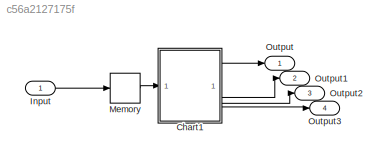
MODEL slx_c56a2127175f
KIND model
CONFIG AbsTol = auto
CONFIG EnableMultiTasking = off
CONFIG FixedStep = auto
CONFIG MaxStep = auto
CONFIG MinStep = auto
CONFIG RelTol = 1e-3
CONFIG SampleTimeConstraint = Unconstrained
CONFIG SolverName = VariableStepAuto
CONFIG StartTime = 0.0
CONFIG StopTime = 10.0
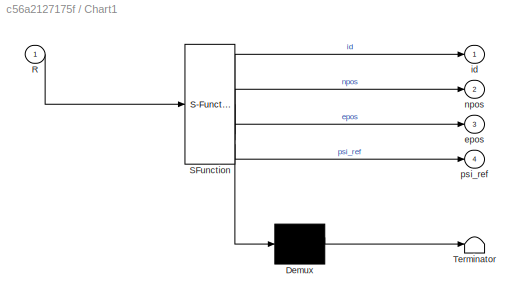
BLOCK [SubSystem] Chart1
  ErrorFcn = Stateflow.Translate.translate
  PermitHierarchicalResolution = ExplicitOnly
  SFBlockType = Chart
  TreatAsAtomicUnit = on
BLOCK [Demux] Chart1/ Demux 
  Outputs = 1
BLOCK [S-Function] Chart1/ SFunction 
  EnableBusSupport = off
  FunctionName = sf_sfun
  PortCounts = [1 5]
  SFcnIsStateOwnerBlock = off
  SFunctionDeploymentMode = off
  Tag = Stateflow S-Function 1
BLOCK [Terminator] Chart1/ Terminator 
BLOCK [Inport] Chart1/R
BLOCK [Outport] Chart1/epos
  Port = 3
BLOCK [Outport] Chart1/id
BLOCK [Outport] Chart1/npos
  Port = 2
BLOCK [Outport] Chart1/psi_ref
  Port = 4
BLOCK [Inport] Input
BLOCK [Memory] Memory
BLOCK [Outport] Output
BLOCK [Outport] Output1
  Port = 2
BLOCK [Outport] Output2
  Port = 3
BLOCK [Outport] Output3
  Port = 4
LINE Chart1:1 -> Output:1
LINE Chart1:2 -> Output1:1
LINE Chart1:3 -> Output2:1
LINE Chart1:4 -> Output3:1
LINE Input:1 -> Memory:1
LINE Memory:1 -> Chart1:1
CHART Chart1 states=5 transitions=6
  STATE_LABEL 'beacon1\nid=1;\nnpos=15000;\nepos=15000;\npsi_ref=45;'
  STATE_LABEL 'beacon2\nid=2;\nnpos=0;\nepos=30000;\npsi_ref=135;'
  STATE_LABEL 'beacon3\nid=3;\nnpos=-15000;\nepos=30000;\npsi_ref=180;'
  STATE_LABEL 'beacon4\nid=4;\nnpos=-30000;\nepos=45000;\npsi_ref=135;'
  STATE_LABEL 'beacon5\nid=5;\nnpos=0;\nepos=0;\npsi_ref=0;'
CHART  states=0 transitions=0
